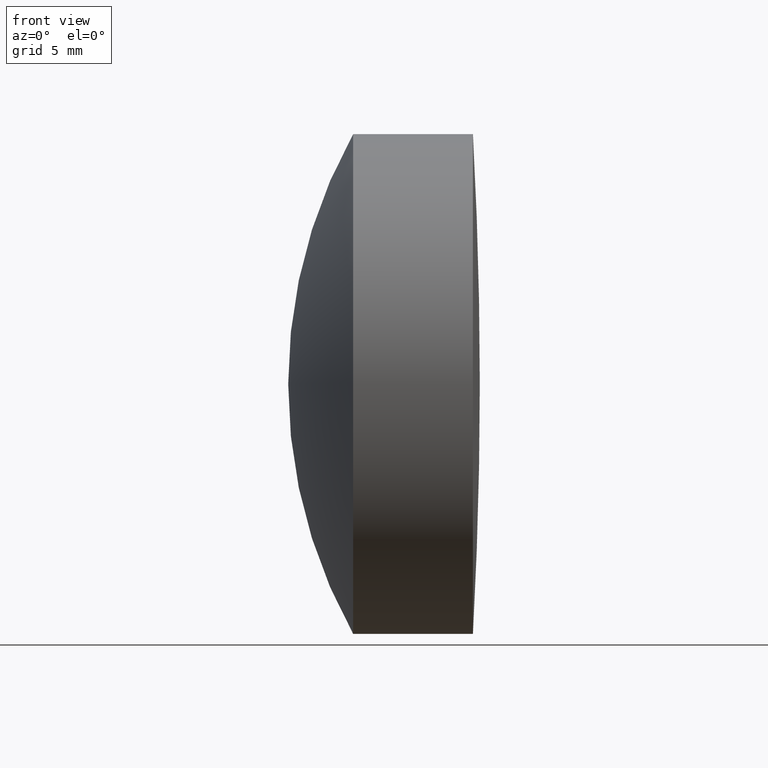
[diagram: clean part render]
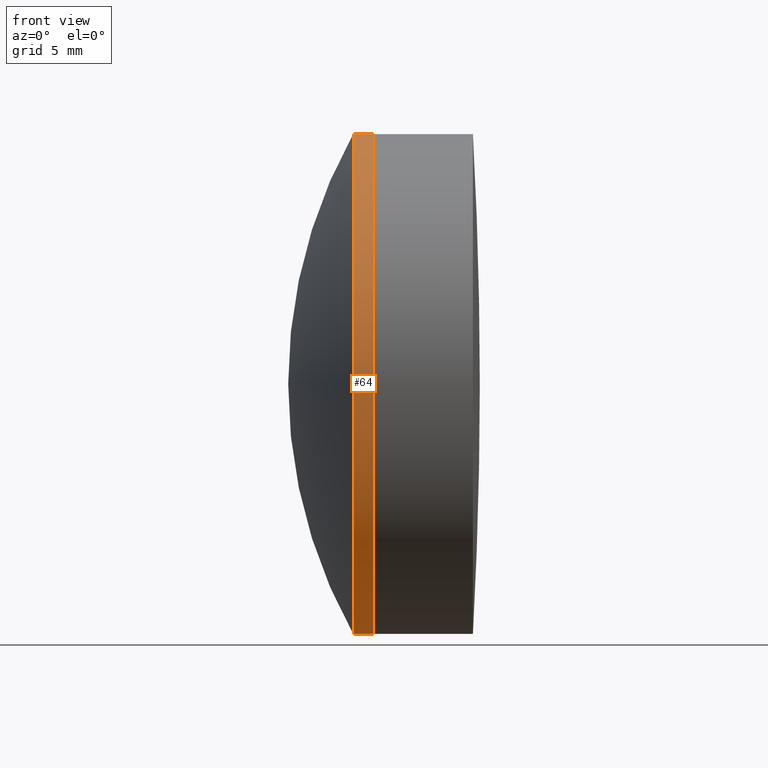
[diagram: same view with one face highlighted and labeled with its STEP entity id]
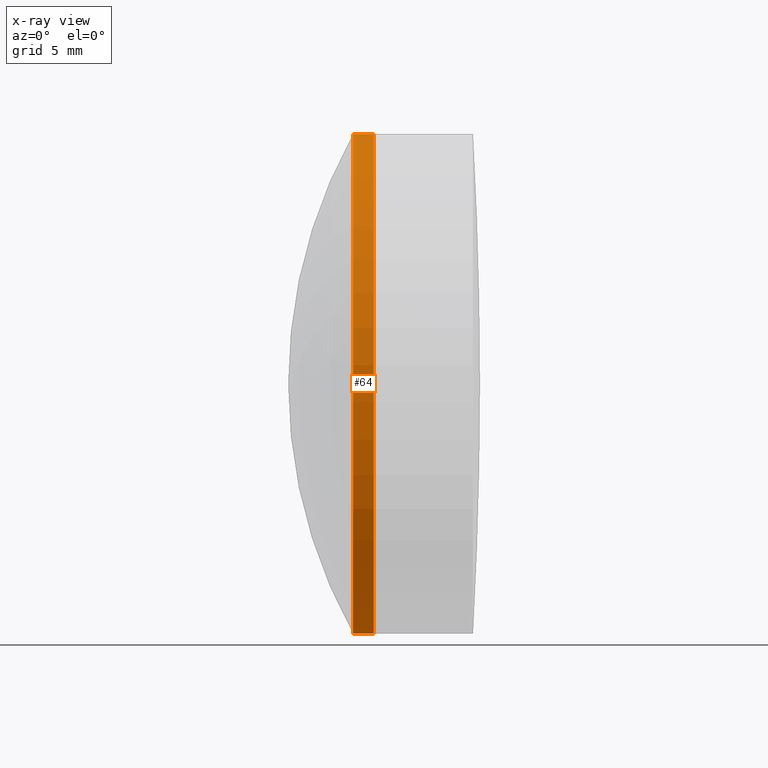
[diagram: x-ray of the same camera — body ghosted, the highlighted face saturated]
A machine part, front view. The second image highlights one B-rep face of the part: STEP entity #64.
The next image is the same camera in x-ray: the body ghosted, the highlighted face saturated — about 0% of this face is hidden behind the body in this view.
In plain terms, the highlighted cylindrical surface (partial cylindrical patch) has radius 15 mm, axis along (-1, -0, -0).
Its self-contained STEP definition (entity closure, byte-faithful):
#11 = VERTEX_POINT ( 'NONE', #252 ) ;
#27 = VECTOR ( 'NONE', #139, 1000.000000000000000 ) ;
#41 = DIRECTION ( 'NONE',  ( -1.000000000000000000, -0.0000000000000000000, -0.0000000000000000000 ) ) ;
#45 = DIRECTION ( 'NONE',  ( 0.0000000000000000000, 0.0000000000000000000, 1.000000000000000000 ) ) ;
#49 = ORIENTED_EDGE ( 'NONE', *, *, #214, .T. ) ;
#64 = ADVANCED_FACE ( 'NONE', ( #295 ), #247, .T. ) ;
#72 = EDGE_CURVE ( 'NONE', #11, #279, #115, .T. ) ;
#75 = DIRECTION ( 'NONE',  ( 0.0000000000000000000, 0.0000000000000000000, 1.000000000000000000 ) ) ;
#103 = DIRECTION ( 'NONE',  ( -1.000000000000000000, -0.0000000000000000000, -0.0000000000000000000 ) ) ;
#107 = EDGE_CURVE ( 'NONE', #333, #122, #213, .T. ) ;
#115 = CIRCLE ( 'NONE', #280, 14.99999999999999800 ) ;
#122 = VERTEX_POINT ( 'NONE', #316 ) ;
#135 = CARTESIAN_POINT ( 'NONE',  ( 340.7316331292209400, 0.0000000000000000000, 0.0000000000000000000 ) ) ;
#139 = DIRECTION ( 'NONE',  ( -1.000000000000000000, -0.0000000000000000000, -0.0000000000000000000 ) ) ;
#143 = CARTESIAN_POINT ( 'NONE',  ( 340.7316331292209400, 1.836970198721029600E-015, -15.00000000000000000 ) ) ;
#160 = CARTESIAN_POINT ( 'NONE',  ( 124.5233095260452400, 1.836970198721029600E-015, -15.00000000000000000 ) ) ;
#165 = DIRECTION ( 'NONE',  ( -1.000000000000000000, -0.0000000000000000000, -0.0000000000000000000 ) ) ;
#166 = ORIENTED_EDGE ( 'NONE', *, *, #107, .T. ) ;
#170 = CARTESIAN_POINT ( 'NONE',  ( 339.5064076100440500, 0.0000000000000000000, 15.00000000000001800 ) ) ;
#176 = AXIS2_PLACEMENT_3D ( 'NONE', #135, #41, #45 ) ;
#178 = ORIENTED_EDGE ( 'NONE', *, *, #227, .F. ) ;
#179 = DIRECTION ( 'NONE',  ( -1.000000000000000000, -0.0000000000000000000, -0.0000000000000000000 ) ) ;
#213 = CIRCLE ( 'NONE', #176, 15.00000000000000000 ) ;
#214 = EDGE_CURVE ( 'NONE', #122, #279, #271, .T. ) ;
#227 = EDGE_CURVE ( 'NONE', #333, #11, #246, .T. ) ;
#232 = CARTESIAN_POINT ( 'NONE',  ( 124.5233095260452400, 0.0000000000000000000, 0.0000000000000000000 ) ) ;
#240 = AXIS2_PLACEMENT_3D ( 'NONE', #232, #103, #75 ) ;
#243 = EDGE_LOOP ( 'NONE', ( #178, #166, #49, #296 ) ) ;
#246 = LINE ( 'NONE', #160, #27 ) ;
#247 = CYLINDRICAL_SURFACE ( 'NONE', #240, 15.00000000000000000 ) ;
#252 = CARTESIAN_POINT ( 'NONE',  ( 339.5064076100440500, 1.836970198721032300E-015, -15.00000000000002000 ) ) ;
#271 = LINE ( 'NONE', #321, #309 ) ;
#279 = VERTEX_POINT ( 'NONE', #170 ) ;
#280 = AXIS2_PLACEMENT_3D ( 'NONE', #336, #179, #310 ) ;
#295 = FACE_OUTER_BOUND ( 'NONE', #243, .T. ) ;
#296 = ORIENTED_EDGE ( 'NONE', *, *, #72, .F. ) ;
#309 = VECTOR ( 'NONE', #165, 1000.000000000000000 ) ;
#310 = DIRECTION ( 'NONE',  ( 0.0000000000000000000, 0.0000000000000000000, 1.000000000000000000 ) ) ;
#316 = CARTESIAN_POINT ( 'NONE',  ( 340.7316331292209400, 0.0000000000000000000, 15.00000000000000000 ) ) ;
#321 = CARTESIAN_POINT ( 'NONE',  ( 124.5233095260452400, 0.0000000000000000000, 15.00000000000000000 ) ) ;
#333 = VERTEX_POINT ( 'NONE', #143 ) ;
#336 = CARTESIAN_POINT ( 'NONE',  ( 339.5064076100440500, 0.0000000000000000000, 0.0000000000000000000 ) ) ;